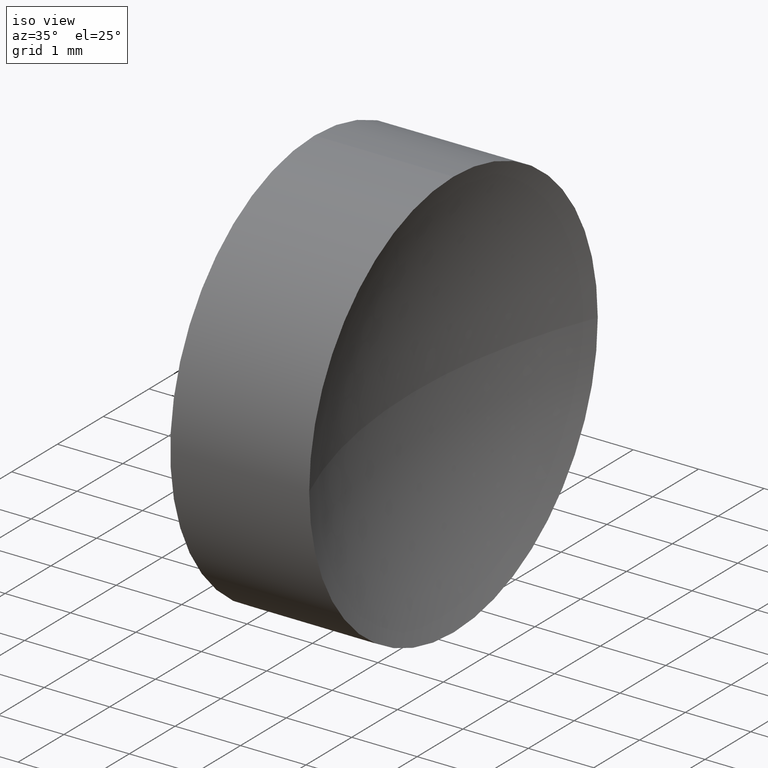
[diagram: clean part render]
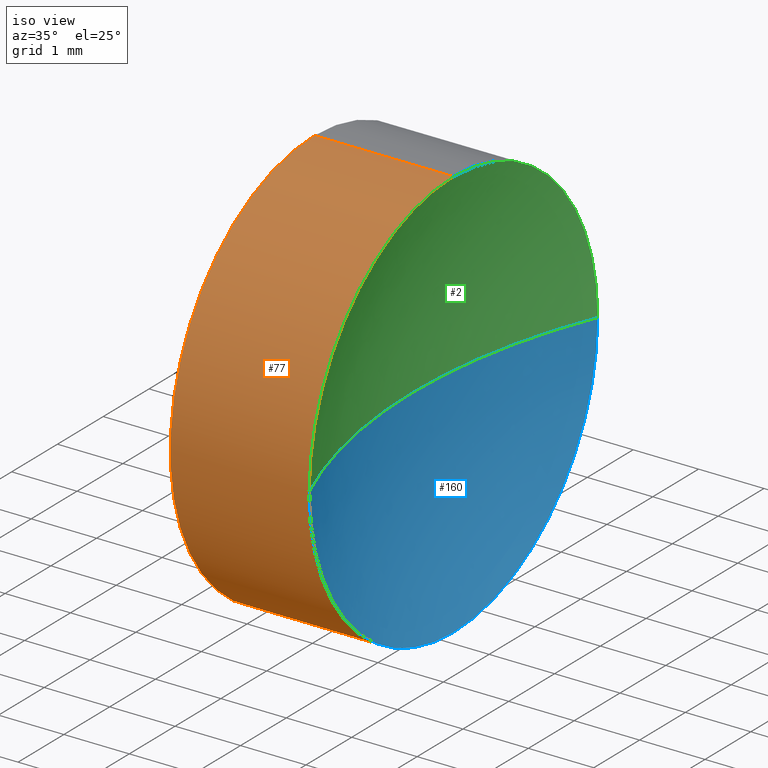
[diagram: same view with three faces highlighted in distinct colors, each labeled with its STEP entity id]
A machine part, iso view with three faces highlighted in distinct colors.
Their STEP definitions:

[orange] entity #77 — the highlighted cylindrical surface (partial cylindrical patch) has radius 3.15 mm, axis along (-1, -0, -0).
#12 = CARTESIAN_POINT ( 'NONE',  ( 24.43349120354416800, 9.881126091403041700, 0.0000000000000000000 ) ) ;
#17 = EDGE_CURVE ( 'NONE', #45, #162, #158, .T. ) ;
#19 = AXIS2_PLACEMENT_3D ( 'NONE', #155, #69, #146 ) ;
#23 = ORIENTED_EDGE ( 'NONE', *, *, #152, .F. ) ;
#26 = LINE ( 'NONE', #127, #33 ) ;
#27 = DIRECTION ( 'NONE',  ( 0.0000000000000000000, 0.0000000000000000000, 1.000000000000000000 ) ) ;
#28 = DIRECTION ( 'NONE',  ( 0.0000000000000000000, 0.0000000000000000000, 1.000000000000000000 ) ) ;
#30 = CYLINDRICAL_SURFACE ( 'NONE', #119, 3.149999999999998100 ) ;
#31 = EDGE_CURVE ( 'NONE', #179, #144, #37, .T. ) ;
#33 = VECTOR ( 'NONE', #167, 1000.000000000000000 ) ;
#37 = CIRCLE ( 'NONE', #110, 3.149999999999998100 ) ;
#45 = VERTEX_POINT ( 'NONE', #132 ) ;
#47 = CARTESIAN_POINT ( 'NONE',  ( 24.43349120354416800, 13.03112609140304000, 0.0000000000000000000 ) ) ;
#50 = ORIENTED_EDGE ( 'NONE', *, *, #31, .T. ) ;
#54 = ORIENTED_EDGE ( 'NONE', *, *, #17, .F. ) ;
#55 = DIRECTION ( 'NONE',  ( -1.000000000000000000, -0.0000000000000000000, -0.0000000000000000000 ) ) ;
#56 = CARTESIAN_POINT ( 'NONE',  ( 20.68403063513288800, 13.03112609140304000, 0.0000000000000000000 ) ) ;
#57 = DIRECTION ( 'NONE',  ( -1.000000000000000000, -0.0000000000000000000, -0.0000000000000000000 ) ) ;
#61 = EDGE_LOOP ( 'NONE', ( #54, #79, #50, #138, #23 ) ) ;
#69 = DIRECTION ( 'NONE',  ( -1.000000000000000000, -0.0000000000000000000, -0.0000000000000000000 ) ) ;
#71 = DIRECTION ( 'NONE',  ( -1.000000000000000000, -0.0000000000000000000, -0.0000000000000000000 ) ) ;
#74 = EDGE_CURVE ( 'NONE', #45, #179, #82, .T. ) ;
#75 = VERTEX_POINT ( 'NONE', #111 ) ;
#77 = ADVANCED_FACE ( 'NONE', ( #153 ), #30, .T. ) ;
#79 = ORIENTED_EDGE ( 'NONE', *, *, #74, .T. ) ;
#80 = EDGE_CURVE ( 'NONE', #144, #75, #26, .T. ) ;
#82 = CIRCLE ( 'NONE', #133, 3.149999999999998100 ) ;
#102 = CARTESIAN_POINT ( 'NONE',  ( 22.30926883257449200, 13.03112609140304000, -3.149999999999998100 ) ) ;
#110 = AXIS2_PLACEMENT_3D ( 'NONE', #47, #71, #28 ) ;
#111 = CARTESIAN_POINT ( 'NONE',  ( 22.30926883257449200, 13.03112609140304000, 3.149999999999998100 ) ) ;
#119 = AXIS2_PLACEMENT_3D ( 'NONE', #56, #57, #27 ) ;
#122 = CARTESIAN_POINT ( 'NONE',  ( 20.68403063513288800, 13.03112609140304000, -3.149999999999998100 ) ) ;
#127 = CARTESIAN_POINT ( 'NONE',  ( 20.68403063513288800, 13.03112609140304000, 3.149999999999998100 ) ) ;
#128 = CARTESIAN_POINT ( 'NONE',  ( 24.43349120354416800, 13.03112609140304000, 0.0000000000000000000 ) ) ;
#132 = CARTESIAN_POINT ( 'NONE',  ( 24.43349120354416800, 13.03112609140304000, -3.149999999999998100 ) ) ;
#133 = AXIS2_PLACEMENT_3D ( 'NONE', #128, #55, #143 ) ;
#136 = CIRCLE ( 'NONE', #19, 3.149999999999998100 ) ;
#137 = DIRECTION ( 'NONE',  ( -1.000000000000000000, -0.0000000000000000000, -0.0000000000000000000 ) ) ;
#138 = ORIENTED_EDGE ( 'NONE', *, *, #80, .T. ) ;
#143 = DIRECTION ( 'NONE',  ( 0.0000000000000000000, 0.0000000000000000000, 1.000000000000000000 ) ) ;
#144 = VERTEX_POINT ( 'NONE', #169 ) ;
#146 = DIRECTION ( 'NONE',  ( 0.0000000000000000000, 0.0000000000000000000, 1.000000000000000000 ) ) ;
#152 = EDGE_CURVE ( 'NONE', #162, #75, #136, .T. ) ;
#153 = FACE_OUTER_BOUND ( 'NONE', #61, .T. ) ;
#155 = CARTESIAN_POINT ( 'NONE',  ( 22.30926883257449200, 13.03112609140304000, 0.0000000000000000000 ) ) ;
#158 = LINE ( 'NONE', #122, #161 ) ;
#161 = VECTOR ( 'NONE', #137, 1000.000000000000000 ) ;
#162 = VERTEX_POINT ( 'NONE', #102 ) ;
#167 = DIRECTION ( 'NONE',  ( -1.000000000000000000, -0.0000000000000000000, -0.0000000000000000000 ) ) ;
#169 = CARTESIAN_POINT ( 'NONE',  ( 24.43349120354416800, 13.03112609140304000, 3.149999999999998100 ) ) ;
#179 = VERTEX_POINT ( 'NONE', #12 ) ;

[blue] entity #160 — the highlighted spherical surface has radius 8.26 mm.
#6 = CIRCLE ( 'NONE', #115, 3.149999999999998100 ) ;
#8 = VERTEX_POINT ( 'NONE', #95 ) ;
#11 = CARTESIAN_POINT ( 'NONE',  ( 24.43349120354416800, 13.03112609140304000, 0.0000000000000000000 ) ) ;
#12 = CARTESIAN_POINT ( 'NONE',  ( 24.43349120354416800, 9.881126091403041700, 0.0000000000000000000 ) ) ;
#20 = EDGE_LOOP ( 'NONE', ( #52, #46, #164, #130 ) ) ;
#22 = SPHERICAL_SURFACE ( 'NONE', #135, 8.259999999999996200 ) ;
#36 = EDGE_CURVE ( 'NONE', #8, #149, #44, .T. ) ;
#39 = DIRECTION ( 'NONE',  ( -1.000000000000000000, -0.0000000000000000000, -0.0000000000000000000 ) ) ;
#41 = EDGE_CURVE ( 'NONE', #8, #45, #6, .T. ) ;
#44 = CIRCLE ( 'NONE', #97, 8.259999999999996200 ) ;
#45 = VERTEX_POINT ( 'NONE', #132 ) ;
#46 = ORIENTED_EDGE ( 'NONE', *, *, #36, .T. ) ;
#48 = FACE_OUTER_BOUND ( 'NONE', #20, .T. ) ;
#52 = ORIENTED_EDGE ( 'NONE', *, *, #41, .F. ) ;
#55 = DIRECTION ( 'NONE',  ( -1.000000000000000000, -0.0000000000000000000, -0.0000000000000000000 ) ) ;
#72 = DIRECTION ( 'NONE',  ( 0.0000000000000000000, 0.0000000000000000000, -1.000000000000000000 ) ) ;
#74 = EDGE_CURVE ( 'NONE', #45, #179, #82, .T. ) ;
#81 = DIRECTION ( 'NONE',  ( 0.0000000000000000000, -1.224646799147353200E-016, 1.000000000000000000 ) ) ;
#82 = CIRCLE ( 'NONE', #133, 3.149999999999998100 ) ;
#95 = CARTESIAN_POINT ( 'NONE',  ( 24.43349120354416800, 16.18112609140303700, 3.857637417314160200E-016 ) ) ;
#97 = AXIS2_PLACEMENT_3D ( 'NONE', #182, #81, #129 ) ;
#100 = DIRECTION ( 'NONE',  ( 0.0000000000000000000, -1.000000000000000000, 0.0000000000000000000 ) ) ;
#101 = CARTESIAN_POINT ( 'NONE',  ( 32.06926883257449400, 13.03112609140304000, 0.0000000000000000000 ) ) ;
#105 = CIRCLE ( 'NONE', #123, 8.259999999999996200 ) ;
#113 = DIRECTION ( 'NONE',  ( 0.0000000000000000000, 0.0000000000000000000, 1.000000000000000000 ) ) ;
#115 = AXIS2_PLACEMENT_3D ( 'NONE', #11, #39, #113 ) ;
#123 = AXIS2_PLACEMENT_3D ( 'NONE', #156, #72, #173 ) ;
#128 = CARTESIAN_POINT ( 'NONE',  ( 24.43349120354416800, 13.03112609140304000, 0.0000000000000000000 ) ) ;
#129 = DIRECTION ( 'NONE',  ( 0.0000000000000000000, -1.000000000000000000, -1.224646799147353200E-016 ) ) ;
#130 = ORIENTED_EDGE ( 'NONE', *, *, #74, .F. ) ;
#132 = CARTESIAN_POINT ( 'NONE',  ( 24.43349120354416800, 13.03112609140304000, -3.149999999999998100 ) ) ;
#133 = AXIS2_PLACEMENT_3D ( 'NONE', #128, #55, #143 ) ;
#135 = AXIS2_PLACEMENT_3D ( 'NONE', #101, #145, #100 ) ;
#143 = DIRECTION ( 'NONE',  ( 0.0000000000000000000, 0.0000000000000000000, 1.000000000000000000 ) ) ;
#145 = DIRECTION ( 'NONE',  ( 0.0000000000000000000, 0.0000000000000000000, 1.000000000000000000 ) ) ;
#149 = VERTEX_POINT ( 'NONE', #184 ) ;
#156 = CARTESIAN_POINT ( 'NONE',  ( 32.06926883257449400, 13.03112609140304000, 0.0000000000000000000 ) ) ;
#160 = ADVANCED_FACE ( 'NONE', ( #48 ), #22, .F. ) ;
#163 = EDGE_CURVE ( 'NONE', #179, #149, #105, .T. ) ;
#164 = ORIENTED_EDGE ( 'NONE', *, *, #163, .F. ) ;
#173 = DIRECTION ( 'NONE',  ( -1.000000000000000000, 0.0000000000000000000, 0.0000000000000000000 ) ) ;
#179 = VERTEX_POINT ( 'NONE', #12 ) ;
#182 = CARTESIAN_POINT ( 'NONE',  ( 32.06926883257449400, 13.03112609140304000, 0.0000000000000000000 ) ) ;
#184 = CARTESIAN_POINT ( 'NONE',  ( 23.80926883257449600, 13.03112609140304000, 0.0000000000000000000 ) ) ;

[green] entity #2 — the highlighted spherical surface has radius 8.26 mm.
#2 = ADVANCED_FACE ( 'NONE', ( #108 ), #65, .F. ) ;
#8 = VERTEX_POINT ( 'NONE', #95 ) ;
#10 = ORIENTED_EDGE ( 'NONE', *, *, #31, .F. ) ;
#12 = CARTESIAN_POINT ( 'NONE',  ( 24.43349120354416800, 9.881126091403041700, 0.0000000000000000000 ) ) ;
#13 = EDGE_LOOP ( 'NONE', ( #172, #34, #10, #120 ) ) ;
#25 = DIRECTION ( 'NONE',  ( 0.0000000000000000000, 0.0000000000000000000, 1.000000000000000000 ) ) ;
#28 = DIRECTION ( 'NONE',  ( 0.0000000000000000000, 0.0000000000000000000, 1.000000000000000000 ) ) ;
#31 = EDGE_CURVE ( 'NONE', #179, #144, #37, .T. ) ;
#34 = ORIENTED_EDGE ( 'NONE', *, *, #94, .F. ) ;
#36 = EDGE_CURVE ( 'NONE', #8, #149, #44, .T. ) ;
#37 = CIRCLE ( 'NONE', #110, 3.149999999999998100 ) ;
#44 = CIRCLE ( 'NONE', #97, 8.259999999999996200 ) ;
#47 = CARTESIAN_POINT ( 'NONE',  ( 24.43349120354416800, 13.03112609140304000, 0.0000000000000000000 ) ) ;
#49 = DIRECTION ( 'NONE',  ( 0.0000000000000000000, -1.000000000000000000, 0.0000000000000000000 ) ) ;
#65 = SPHERICAL_SURFACE ( 'NONE', #165, 8.259999999999996200 ) ;
#71 = DIRECTION ( 'NONE',  ( -1.000000000000000000, -0.0000000000000000000, -0.0000000000000000000 ) ) ;
#72 = DIRECTION ( 'NONE',  ( 0.0000000000000000000, 0.0000000000000000000, -1.000000000000000000 ) ) ;
#81 = DIRECTION ( 'NONE',  ( 0.0000000000000000000, -1.224646799147353200E-016, 1.000000000000000000 ) ) ;
#86 = CARTESIAN_POINT ( 'NONE',  ( 24.43349120354416800, 13.03112609140304000, 0.0000000000000000000 ) ) ;
#94 = EDGE_CURVE ( 'NONE', #144, #8, #116, .T. ) ;
#95 = CARTESIAN_POINT ( 'NONE',  ( 24.43349120354416800, 16.18112609140303700, 3.857637417314160200E-016 ) ) ;
#97 = AXIS2_PLACEMENT_3D ( 'NONE', #182, #81, #129 ) ;
#105 = CIRCLE ( 'NONE', #123, 8.259999999999996200 ) ;
#108 = FACE_OUTER_BOUND ( 'NONE', #13, .T. ) ;
#110 = AXIS2_PLACEMENT_3D ( 'NONE', #47, #71, #28 ) ;
#112 = DIRECTION ( 'NONE',  ( -1.000000000000000000, -0.0000000000000000000, -0.0000000000000000000 ) ) ;
#116 = CIRCLE ( 'NONE', #131, 3.149999999999998100 ) ;
#120 = ORIENTED_EDGE ( 'NONE', *, *, #163, .T. ) ;
#123 = AXIS2_PLACEMENT_3D ( 'NONE', #156, #72, #173 ) ;
#129 = DIRECTION ( 'NONE',  ( 0.0000000000000000000, -1.000000000000000000, -1.224646799147353200E-016 ) ) ;
#131 = AXIS2_PLACEMENT_3D ( 'NONE', #86, #112, #25 ) ;
#140 = CARTESIAN_POINT ( 'NONE',  ( 32.06926883257449400, 13.03112609140304000, 0.0000000000000000000 ) ) ;
#144 = VERTEX_POINT ( 'NONE', #169 ) ;
#149 = VERTEX_POINT ( 'NONE', #184 ) ;
#150 = DIRECTION ( 'NONE',  ( 0.0000000000000000000, 0.0000000000000000000, 1.000000000000000000 ) ) ;
#156 = CARTESIAN_POINT ( 'NONE',  ( 32.06926883257449400, 13.03112609140304000, 0.0000000000000000000 ) ) ;
#163 = EDGE_CURVE ( 'NONE', #179, #149, #105, .T. ) ;
#165 = AXIS2_PLACEMENT_3D ( 'NONE', #140, #150, #49 ) ;
#169 = CARTESIAN_POINT ( 'NONE',  ( 24.43349120354416800, 13.03112609140304000, 3.149999999999998100 ) ) ;
#172 = ORIENTED_EDGE ( 'NONE', *, *, #36, .F. ) ;
#173 = DIRECTION ( 'NONE',  ( -1.000000000000000000, 0.0000000000000000000, 0.0000000000000000000 ) ) ;
#179 = VERTEX_POINT ( 'NONE', #12 ) ;
#182 = CARTESIAN_POINT ( 'NONE',  ( 32.06926883257449400, 13.03112609140304000, 0.0000000000000000000 ) ) ;
#184 = CARTESIAN_POINT ( 'NONE',  ( 23.80926883257449600, 13.03112609140304000, 0.0000000000000000000 ) ) ;